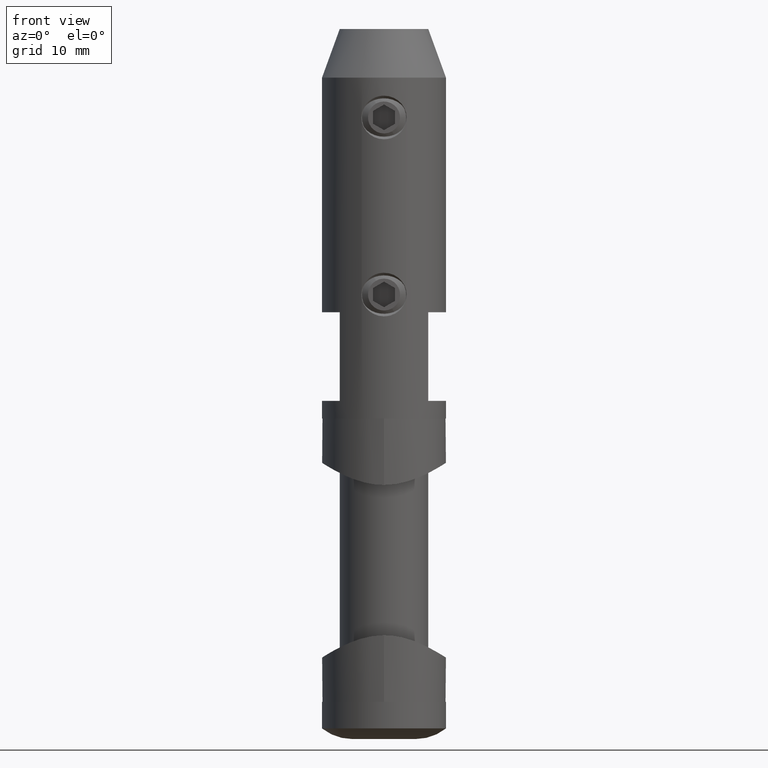
[diagram: clean part render]
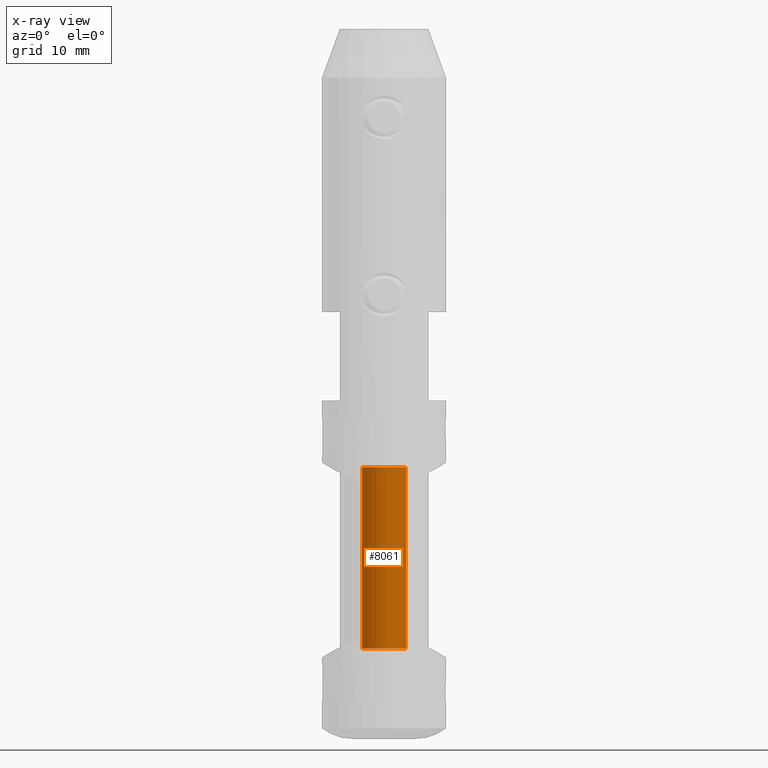
[diagram: x-ray — body ghosted, one internal face saturated and labeled with its STEP entity id]
A machine part, front view, then the same camera in x-ray: the body is ghosted and one INTERNAL B-rep face — a face not visible from any outside direction — is saturated and labeled: STEP entity #8061.
In plain terms, the highlighted cylindrical surface (edge-blend (fillet) strip) has radius 2.5 mm, axis along (0, 0, 1).
Its self-contained STEP definition (entity closure, byte-faithful):
#795 = DIRECTION ( 'NONE',  ( 1.000000000000000000, 0.000000000000000000, 0.000000000000000000 ) ) ;
#1123 = AXIS2_PLACEMENT_3D ( 'NONE', #6908, #19305, #6773 ) ;
#1668 = VERTEX_POINT ( 'NONE', #11602 ) ;
#1703 = ORIENTED_EDGE ( 'NONE', *, *, #2175, .T. ) ;
#1712 = VERTEX_POINT ( 'NONE', #20115 ) ;
#1751 = CARTESIAN_POINT ( 'NONE',  ( 2.499999999999992895, 0.000000000000000000, 13.00000000000000533 ) ) ;
#2175 = EDGE_CURVE ( 'NONE', #1712, #1668, #20203, .T. ) ;
#2195 = DIRECTION ( 'NONE',  ( 0.000000000000000000, 0.000000000000000000, 1.000000000000000000 ) ) ;
#3959 = DIRECTION ( 'NONE',  ( 1.000000000000000000, 0.000000000000000000, 0.000000000000000000 ) ) ;
#5451 = CARTESIAN_POINT ( 'NONE',  ( 2.499999999999995559, 0.000000000000000000, -7.500000000000000000 ) ) ;
#5612 = VECTOR ( 'NONE', #14155, 1000.000000000000000 ) ;
#5729 = CYLINDRICAL_SURFACE ( 'NONE', #1123, 2.499999999999992895 ) ;
#6773 = DIRECTION ( 'NONE',  ( 1.000000000000000000, 0.000000000000000000, 0.000000000000000000 ) ) ;
#6807 = CARTESIAN_POINT ( 'NONE',  ( 0.000000000000000000, 0.000000000000000000, -7.500000000000000000 ) ) ;
#6908 = CARTESIAN_POINT ( 'NONE',  ( 0.000000000000000000, 0.000000000000000000, 13.49999999999999822 ) ) ;
#7005 = DIRECTION ( 'NONE',  ( -0.000000000000000000, -0.000000000000000000, 1.000000000000000000 ) ) ;
#7876 = VECTOR ( 'NONE', #15830, 1000.000000000000000 ) ;
#8061 = ADVANCED_FACE ( 'NONE', ( #20100 ), #5729, .F. ) ;
#8215 = ORIENTED_EDGE ( 'NONE', *, *, #10077, .F. ) ;
#8507 = CARTESIAN_POINT ( 'NONE',  ( 0.000000000000000000, 0.000000000000000000, 13.00000000000000533 ) ) ;
#8558 = CIRCLE ( 'NONE', #9837, 2.499999999999995559 ) ;
#9264 = VERTEX_POINT ( 'NONE', #1751 ) ;
#9580 = CARTESIAN_POINT ( 'NONE',  ( 2.499999999999992895, 0.000000000000000000, 13.49999999999999822 ) ) ;
#9837 = AXIS2_PLACEMENT_3D ( 'NONE', #6807, #7005, #795 ) ;
#10077 = EDGE_CURVE ( 'NONE', #17481, #9264, #11053, .T. ) ;
#10173 = ORIENTED_EDGE ( 'NONE', *, *, #13122, .F. ) ;
#11053 = LINE ( 'NONE', #9580, #7876 ) ;
#11370 = EDGE_CURVE ( 'NONE', #1668, #9264, #15402, .T. ) ;
#11602 = CARTESIAN_POINT ( 'NONE',  ( -2.499999999999992895, 3.061616997868373773E-16, 13.00000000000000533 ) ) ;
#13122 = EDGE_CURVE ( 'NONE', #1712, #17481, #8558, .T. ) ;
#13127 = AXIS2_PLACEMENT_3D ( 'NONE', #8507, #2195, #3959 ) ;
#14155 = DIRECTION ( 'NONE',  ( -0.000000000000000000, -0.000000000000000000, 1.000000000000000000 ) ) ;
#14509 = EDGE_LOOP ( 'NONE', ( #10173, #1703, #14947, #8215 ) ) ;
#14947 = ORIENTED_EDGE ( 'NONE', *, *, #11370, .T. ) ;
#15402 = CIRCLE ( 'NONE', #13127, 2.499999999999992895 ) ;
#15626 = CARTESIAN_POINT ( 'NONE',  ( -2.499999999999992895, 3.061616997868373773E-16, 13.49999999999999822 ) ) ;
#15830 = DIRECTION ( 'NONE',  ( -0.000000000000000000, -0.000000000000000000, 1.000000000000000000 ) ) ;
#17481 = VERTEX_POINT ( 'NONE', #5451 ) ;
#19305 = DIRECTION ( 'NONE',  ( -0.000000000000000000, -0.000000000000000000, 1.000000000000000000 ) ) ;
#20100 = FACE_OUTER_BOUND ( 'NONE', #14509, .T. ) ;
#20115 = CARTESIAN_POINT ( 'NONE',  ( -2.499999999999995559, 3.061616997868377718E-16, -7.500000000000000000 ) ) ;
#20203 = LINE ( 'NONE', #15626, #5612 ) ;